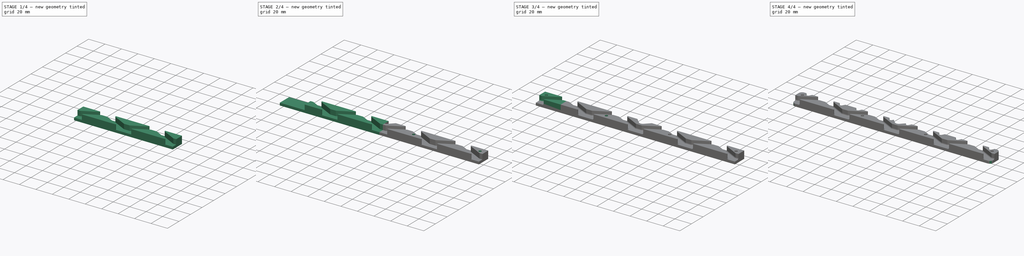
[diagram: build sequence overview — one tinted view per stage of 4, left to right]
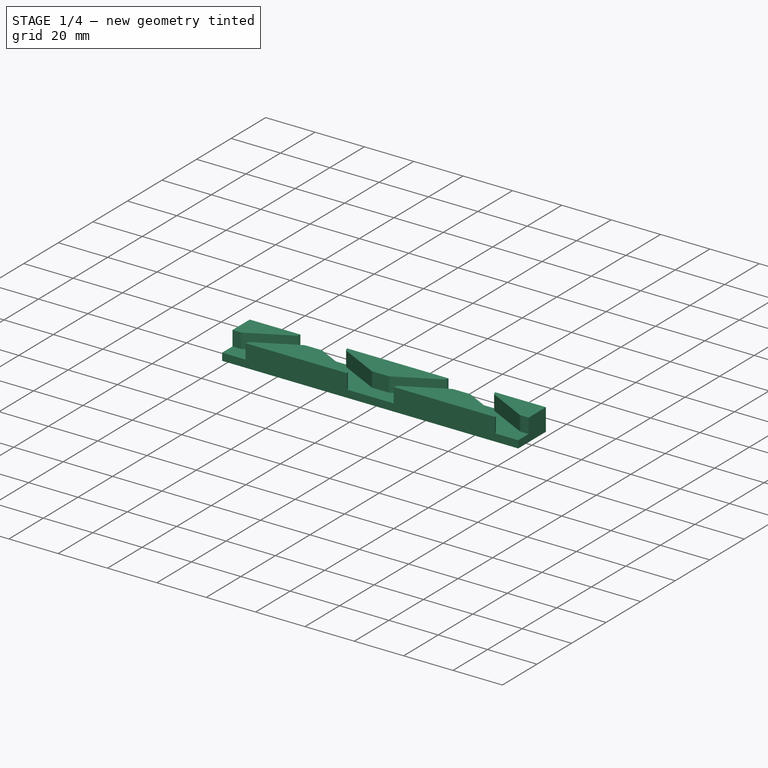
[diagram: stage 1 of 4 — iso view after this stage's code; geometry added in this stage tinted green]
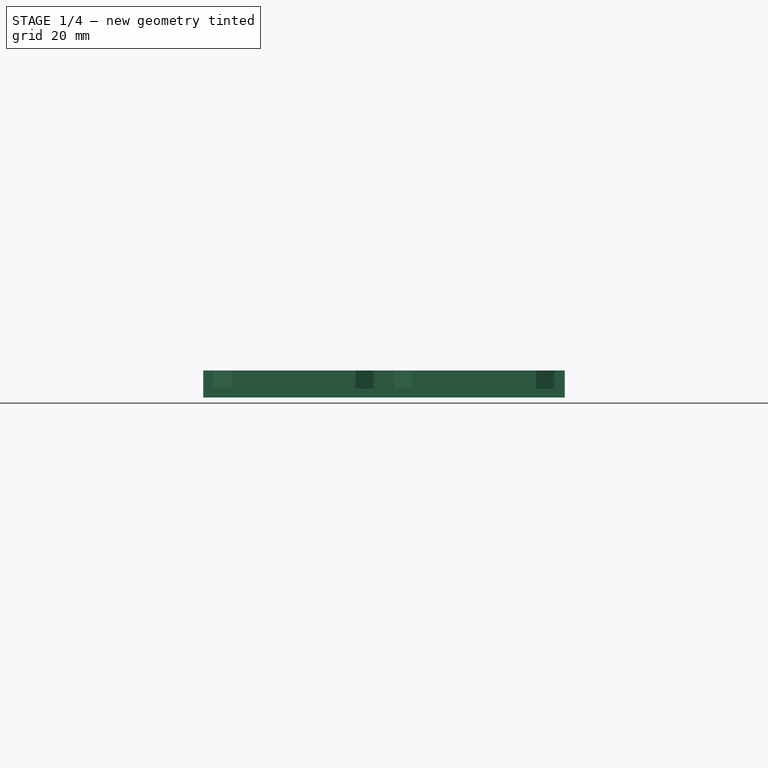
[diagram: stage 1 of 4 — front view after this stage's code; geometry added in this stage tinted green]
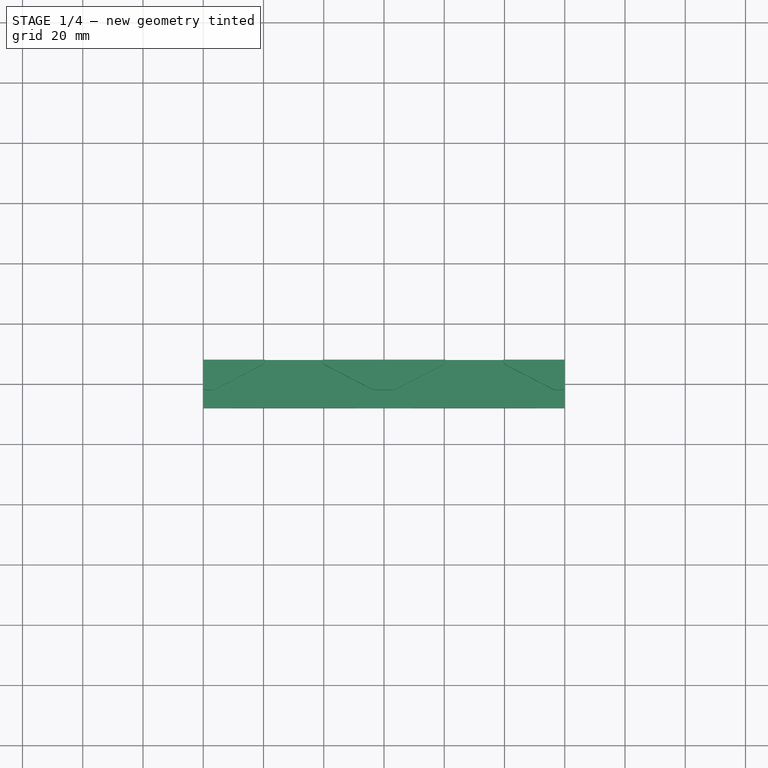
[diagram: stage 1 of 4 — top view after this stage's code; geometry added in this stage tinted green]
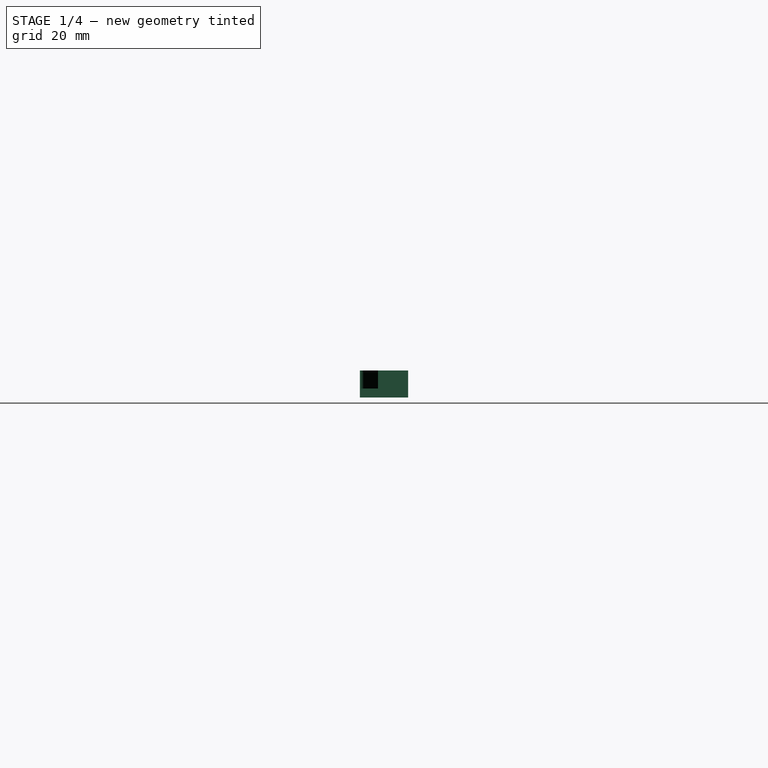
[diagram: stage 1 of 4 — right view after this stage's code; geometry added in this stage tinted green]
FCSTD DOCUMENT  (FreeCAD 0.18R16110 (Git))
Label: WireRackMount
License: All rights reserved
LicenseURL: http://en.wikipedia.org/wiki/All_rights_reserved
objects: PartDesign::Mirrored×5, Sketcher::SketchObject×4, PartDesign::LinearPattern×4, PartDesign::MultiTransform×3, PartDesign::Pad×2, PartDesign::Pocket×2, PartDesign::Fillet×2, PartDesign::Body×1
note: 27 computed .brp shape members not serialized (recipe doc carries the construction recipe); baked Part::Feature solids carry a one-line shape summary decoded from their .brp

FEATURE [Sketcher::SketchObject] Sketch
  MapMode = 5
  Support = -> [XY_Plane]
  sketch-geometry (4):
    g0: LineSegment StartX=0 StartY=-8 StartZ=0 EndX=120 EndY=-8 EndZ=0
    g1: LineSegment StartX=120 StartY=-8 StartZ=0 EndX=120 EndY=8 EndZ=0
    g2: LineSegment StartX=120 StartY=8 StartZ=0 EndX=0 EndY=8 EndZ=0
    g3: LineSegment StartX=0 StartY=8 StartZ=0 EndX=0 EndY=-8 EndZ=0
  constraints (11):
    c: Coincident(g0,g1)
    c: Coincident(g1,g2)
    c: Coincident(g2,g3)
    c: Coincident(g3,g0)
    c: Horizontal(g0)
    c: Horizontal(g2)
    c: Vertical(g1)
    c: PointOnObject(g0,g-2)
    c: Symmetric(g2,g0,g-1)
    c: DistanceY(g3,g3) = 16
    c: DistanceX(g2,g2) = 120
FEATURE [PartDesign::Pad] Pad  label="Backplane"
  Length = 3
  Length2 = 100
  Profile = -> Sketch
  Type = 0
FEATURE [Sketcher::SketchObject] Sketch001
  ExternalGeometry = -> [Pad]
  MapMode = 5
  Placement = pos=(0,0,3) rot=(0,0,1;0rad)
  Support = -> [Pad]
  sketch-geometry (15):
    g0: LineSegment StartX=0 StartY=8 StartZ=0 EndX=0 EndY=-2 EndZ=0
    g1: LineSegment StartX=3.91667 StartY=-1.77756 StartZ=0 EndX=19.4299 EndY=6.22244 EndZ=0
    g2: LineSegment StartX=20.5133 StartY=8 StartZ=0 EndX=0 EndY=8 EndZ=0
    g3: LineSegment StartX=10.5701 StartY=-6.22244 StartZ=0 EndX=26.0833 EndY=1.77756 EndZ=0
    g4: LineSegment StartX=9.48674 StartY=-8 StartZ=0 EndX=30 EndY=-8 EndZ=0
    g5: LineSegment StartX=30 StartY=2 StartZ=0 EndX=30 EndY=-8 EndZ=0
    g6: LineSegment [constr] StartX=19.4299 StartY=6.22244 StartZ=0 EndX=22.6383 EndY=0.000976688 EndZ=0
    g7: ArcOfCircle CenterX=11.4867 CenterY=-8 CenterZ=0 NormalX=0 NormalY=0 NormalZ=1 AngleXU=0 Radius=2 StartAngle=2.04692 EndAngle=3.14159
    g8: ArcOfCircle CenterX=18.5133 CenterY=8 CenterZ=0 NormalX=0 NormalY=0 NormalZ=1 AngleXU=0 Radius=2 StartAngle=5.18851 EndAngle=6.28319
    g9: ArcOfCircle CenterX=27 CenterY=-8e-16 CenterZ=0 NormalX=0 NormalY=0 NormalZ=1 AngleXU=0 Radius=2 StartAngle=1.5708 EndAngle=2.04692
    g10: ArcOfCircle CenterX=3 CenterY=0 CenterZ=0 NormalX=0 NormalY=0 NormalZ=1 AngleXU=0 Radius=2 StartAngle=4.71239 EndAngle=5.18851
    g11: LineSegment StartX=0 StartY=-2 StartZ=0 EndX=3 EndY=-2 EndZ=0
    g12: LineSegment [constr] StartX=3 StartY=-2 StartZ=0 EndX=3 EndY=0 EndZ=0
    g13: LineSegment [constr] StartX=27 StartY=-8e-16 StartZ=0 EndX=27 EndY=2 EndZ=0
    g14: LineSegment StartX=30 StartY=2 StartZ=0 EndX=27 EndY=2 EndZ=0
  constraints (44):
    c: PointOnObject(g0,g-2)
    c: Horizontal(g2)
    c: Coincident(g2,g0)
    c: Vertical(g5)
    c: Horizontal(g4)
    c: Coincident(g0,g-3)
    c: DistanceY(g5,g5) = 10
    c: PointOnObject(g6,g3)
    c: Perpendicular(g6,g1)
    c: Distance(g6) = 7
    c: Parallel(g1,g3)
    c: DistanceY(g-3,g0) = 6
    c: Coincident(g4,g5)
    c: PointOnObject(g7,g4)
    c: Tangent(g3,g7) = 1.5708
    c: Coincident(g7,g4)
    c: PointOnObject(g-3,g4)
    c: Radius(g7) = 2
    c: PointOnObject(g8,g2)
    c: Coincident(g2,g8)
    c: Tangent(g8,g1) = -1.5708
    c: Tangent(g1,g10) = -1.5708
    c: Tangent(g3,g9) = 1.5708
    c: DistanceX(g-1,g4) = 30
    c: Equal(g7,g10)
    c: Equal(g10,g8)
    c: Equal(g8,g9)
    c: Coincident(g6,g1)
    c: Equal(g3,g1)
    c: DistanceX(g-3,g4) = 9.48674
    c: Coincident(g11,g0)
    c: Coincident(g11,g10)
    c: Tangent(g11,g10)
    c: Coincident(g12,g10)
    c: Coincident(g12,g10)
    c: Horizontal(g11)
    c: Coincident(g13,g9)
    c: Coincident(g13,g9)
    c: Vertical(g13)
    c: Coincident(g14,g5)
    c: Coincident(g14,g9)
    c: Horizontal(g14)
    c: Equal(g11,g14)
    c: DistanceX(g11,g11) = 3
FEATURE [PartDesign::Pad] Pad001  label="Notches"
  BaseFeature = -> Pad
  Length = 6
  Length2 = 100
  Profile = -> Sketch001
  Type = 0
FEATURE [PartDesign::Mirrored] Mirrored
  MirrorPlane = -> Pad001 [Face13]
FEATURE [PartDesign::LinearPattern] LinearPattern
  Direction = -> Sketch001 [H_Axis]
  Length = 60
  Occurrences = 2
FEATURE [PartDesign::MultiTransform] MultiTransform
  BaseFeature = -> Pad001
  Originals = -> [Pad001]
  Transformations = -> [Mirrored,LinearPattern]
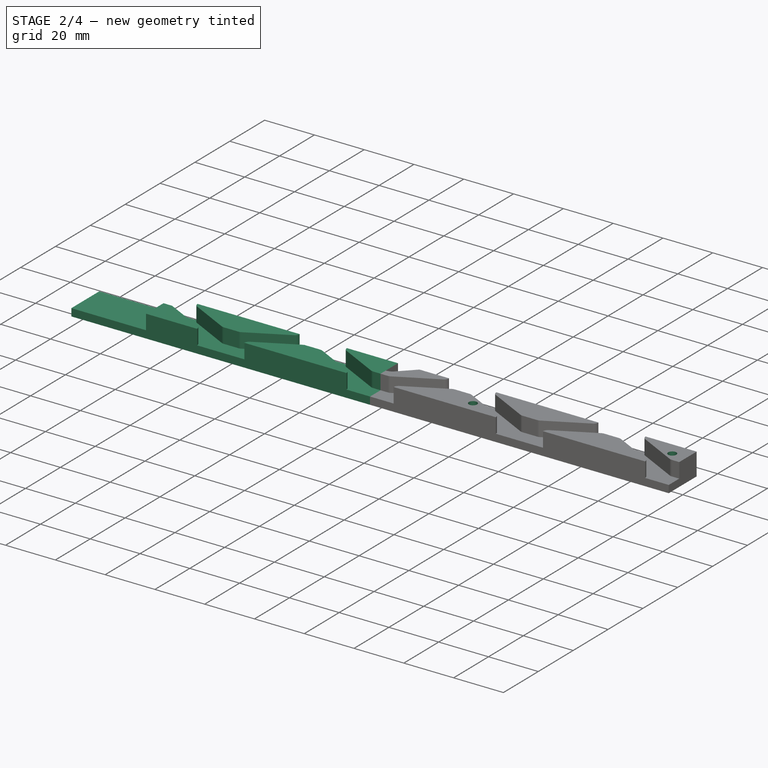
[diagram: stage 2 of 4 — iso view after this stage's code; geometry added in this stage tinted green]
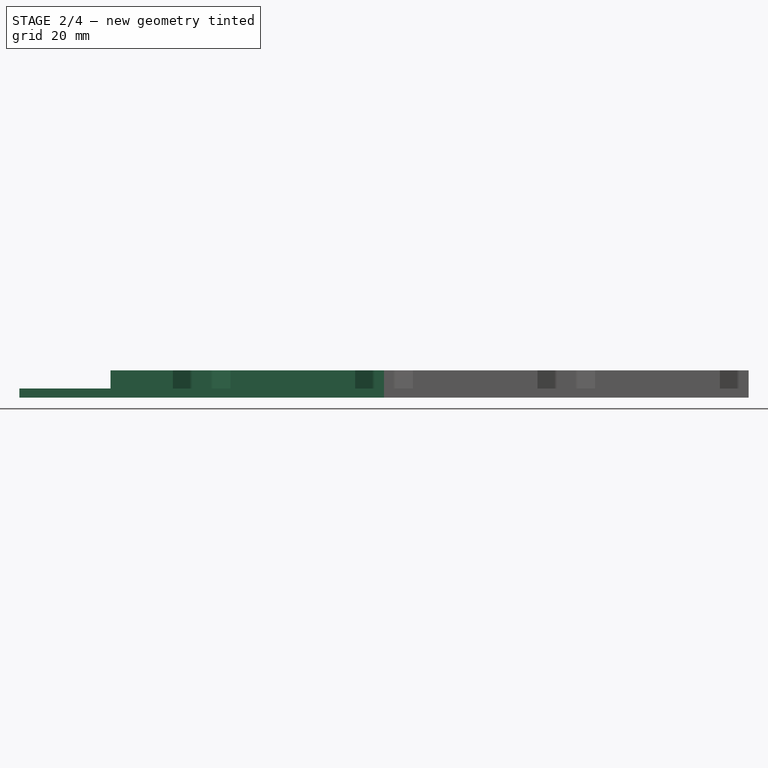
[diagram: stage 2 of 4 — front view after this stage's code; geometry added in this stage tinted green]
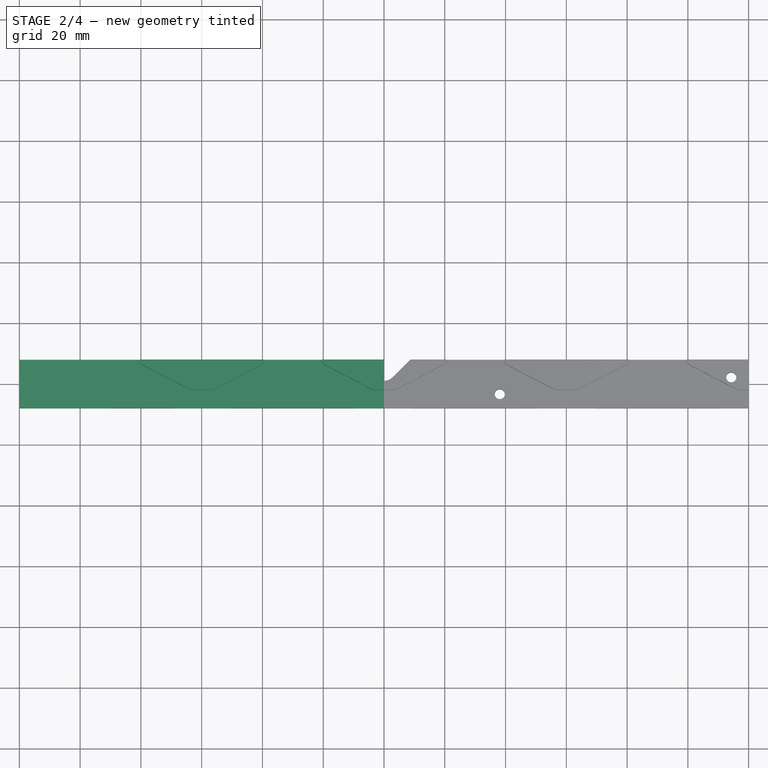
[diagram: stage 2 of 4 — top view after this stage's code; geometry added in this stage tinted green]
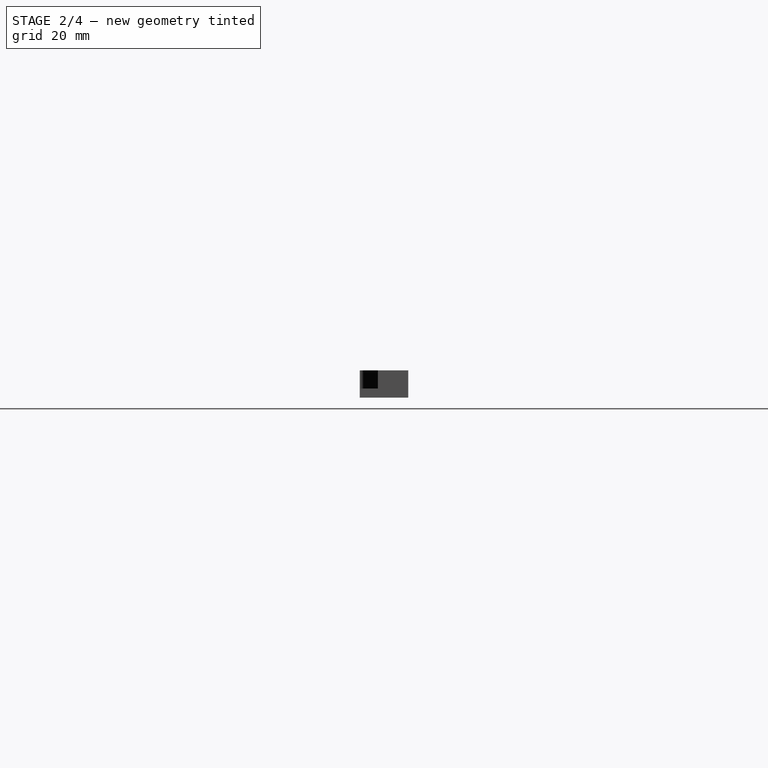
[diagram: stage 2 of 4 — right view after this stage's code; geometry added in this stage tinted green]
FEATURE [Sketcher::SketchObject] Sketch002
  ExternalGeometry = -> [MultiTransform]
  MapMode = 5
  Placement = pos=(0,0,9) rot=(0,0,1;0rad)
  Support = -> [MultiTransform]
  sketch-geometry (8):
    g0: Circle CenterX=38.1 CenterY=-3.37973 CenterZ=0 NormalX=0 NormalY=0 NormalZ=1 AngleXU=0 Radius=1.65
    g1: Circle CenterX=114.3 CenterY=2.14208 CenterZ=0 NormalX=0 NormalY=0 NormalZ=1 AngleXU=0 Radius=1.65
    g2: LineSegment [constr] StartX=38.1 StartY=-3.37973 StartZ=0 EndX=38.1 EndY=-0.379734 EndZ=0
    g3: LineSegment [constr] StartX=114.3 StartY=2.14208 StartZ=0 EndX=114.3 EndY=-0.857918 EndZ=0
    g4: ArcOfCircle CenterX=0 CenterY=5 CenterZ=0 NormalX=0 NormalY=0 NormalZ=1 AngleXU=0 Radius=4 StartAngle=4.71239 EndAngle=5.49779
    g5: LineSegment StartX=0 StartY=9 StartZ=0 EndX=9.65685 EndY=9 EndZ=0
    g6: LineSegment StartX=9.65685 StartY=9 StartZ=0 EndX=2.82843 EndY=2.17157 EndZ=0
    g7: LineSegment StartX=0 StartY=9 StartZ=0 EndX=0 EndY=1 EndZ=0
  constraints (24):
    c: Coincident(g2,g0)
    c: Vertical(g2)
    c: Coincident(g3,g1)
    c: Vertical(g3)
    c: Equal(g2,g3)
    c: Equal(g1,g0)
    c: Radius(g1) = 1.65
    c: DistanceY(g3,g3) = 3
    c: DistanceX(g-1,g0) = 38.1
    c: DistanceX(g0,g1) = 76.2
    c: PointOnObject(g4,g-2)
    c: Coincident(g5,g6)
    c: Horizontal(g5)
    c: PointOnObject(g5,g-2)
    c: Coincident(g7,g4)
    c: PointOnObject(g4,g7)
    c: Coincident(g5,g7)
    c: Radius(g4) = 4
    c: PointOnObject(g2,g-6)
    c: PointOnObject(g3,g-7)
    c: DistanceY(g4,g-8) = 3
    c: Tangent(g6,g4) = 1.5708
    c: Angle(g5,g6) = 0.785398
    c: DistanceY(g-8,g5) = 1
FEATURE [PartDesign::Pocket] Pocket  label="CenterRodHole"
  BaseFeature = -> MultiTransform
  Length = 5
  Length2 = 100
  Profile = -> Sketch002
  Type = 1
FEATURE [PartDesign::Mirrored] Mirrored001  label="BackplaneMirror"
  BaseFeature = -> Pocket
  MirrorPlane = -> Sketch [V_Axis]
  Originals = -> [Pad]
FEATURE [PartDesign::Mirrored] Mirrored002
  MirrorPlane = -> Sketch001 [V_Axis]
FEATURE [PartDesign::LinearPattern] LinearPattern001
  Direction = -> Sketch001 [H_Axis]
  Length = 60
  Occurrences = 2
  Reversed = true
FEATURE [PartDesign::MultiTransform] MultiTransform001  label="NotchMirror1"
  BaseFeature = -> Mirrored001
  Originals = -> [Pad001]
  Transformations = -> [Mirrored002,LinearPattern001]
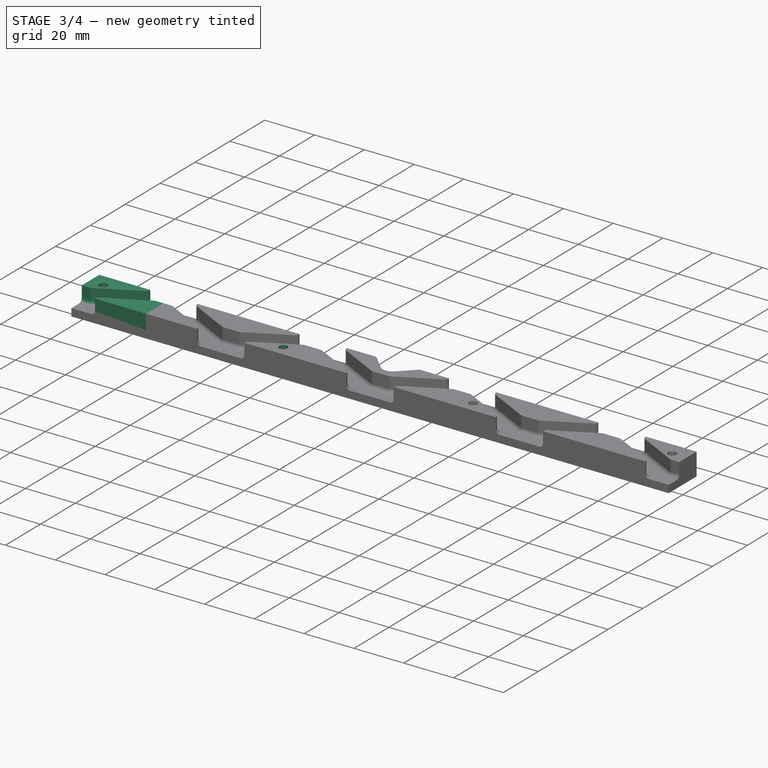
[diagram: stage 3 of 4 — iso view after this stage's code; geometry added in this stage tinted green]
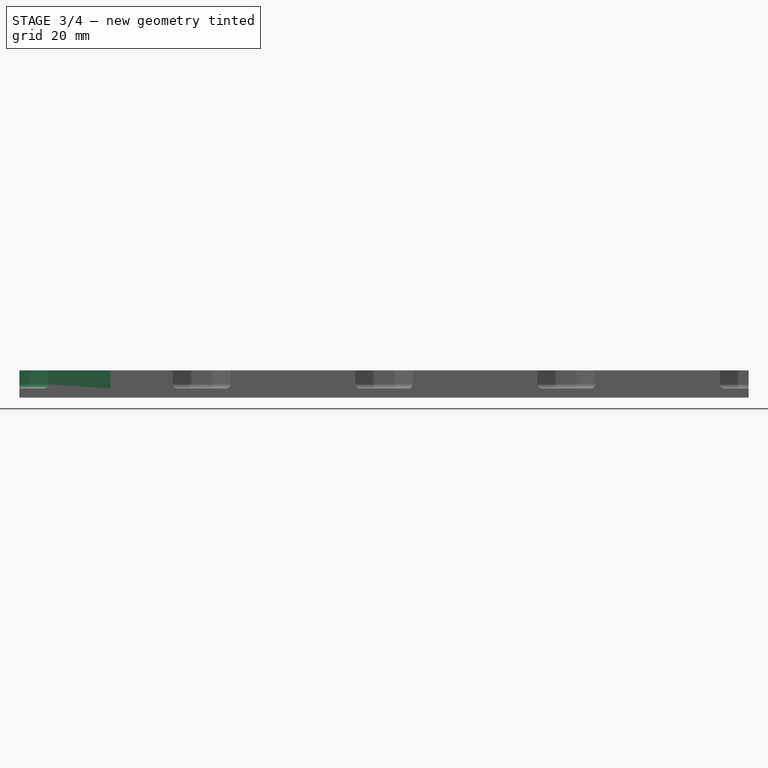
[diagram: stage 3 of 4 — front view after this stage's code; geometry added in this stage tinted green]
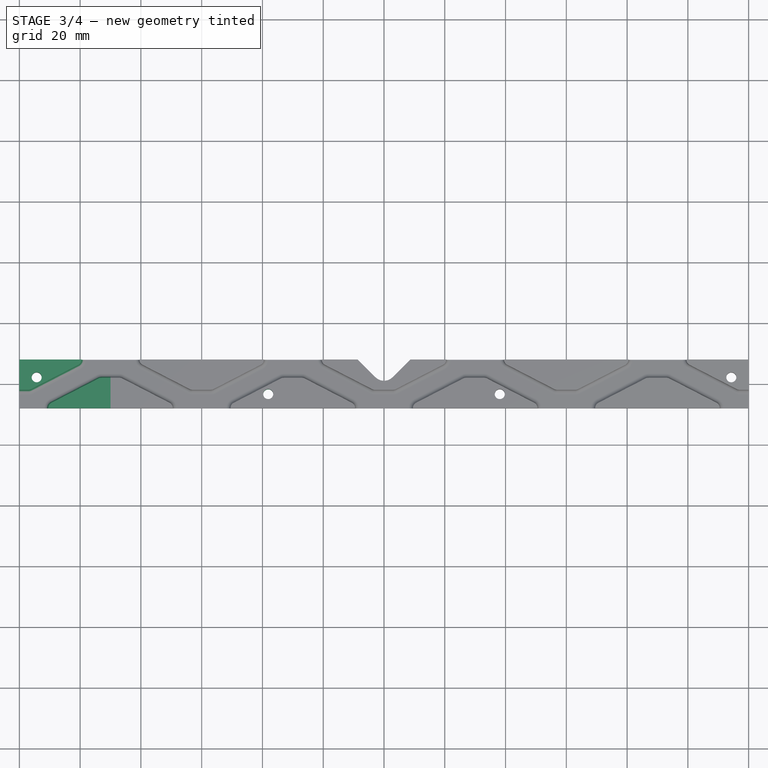
[diagram: stage 3 of 4 — top view after this stage's code; geometry added in this stage tinted green]
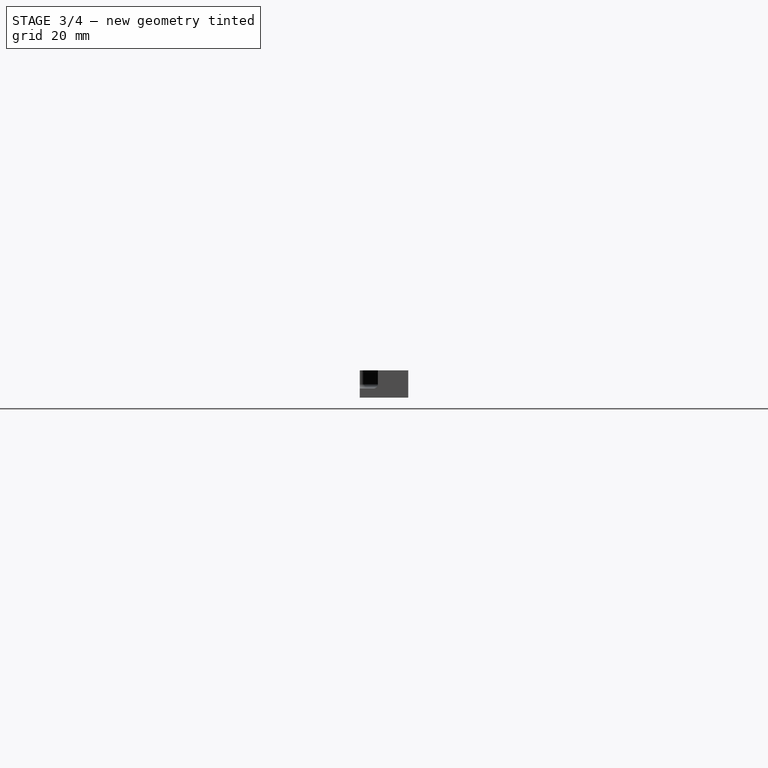
[diagram: stage 3 of 4 — right view after this stage's code; geometry added in this stage tinted green]
FEATURE [PartDesign::LinearPattern] LinearPattern002  label="NotchMirror2"
  BaseFeature = -> MultiTransform001
  Direction = -> Sketch001 [H_Axis]
  Length = 120
  Occurrences = 2
  Originals = -> [Pad001]
  Reversed = true
FEATURE [PartDesign::Mirrored] Mirrored003
  BaseFeature = -> LinearPattern002
  MirrorPlane = -> Sketch002 [V_Axis]
  Originals = -> [Pocket]
FEATURE [PartDesign::Fillet] Fillet
  Base = -> Mirrored003 [Edge103,Edge99,Edge95,Edge111,Edge86,Edge62,Edge36,Edge45,Edge54]
  BaseFeature = -> Mirrored003
  Radius = 1.5
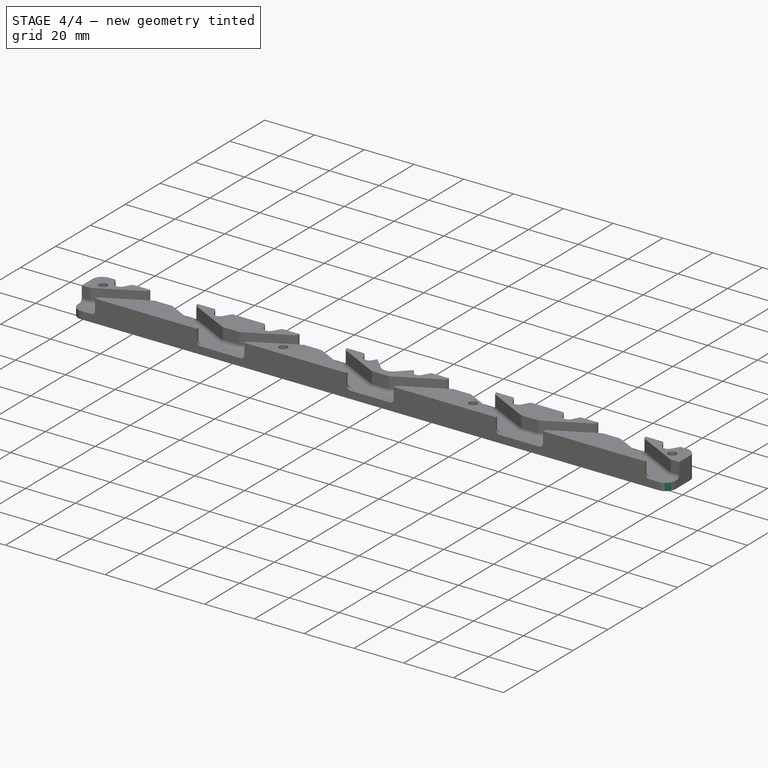
[diagram: stage 4 of 4 — iso view after this stage's code; geometry added in this stage tinted green]
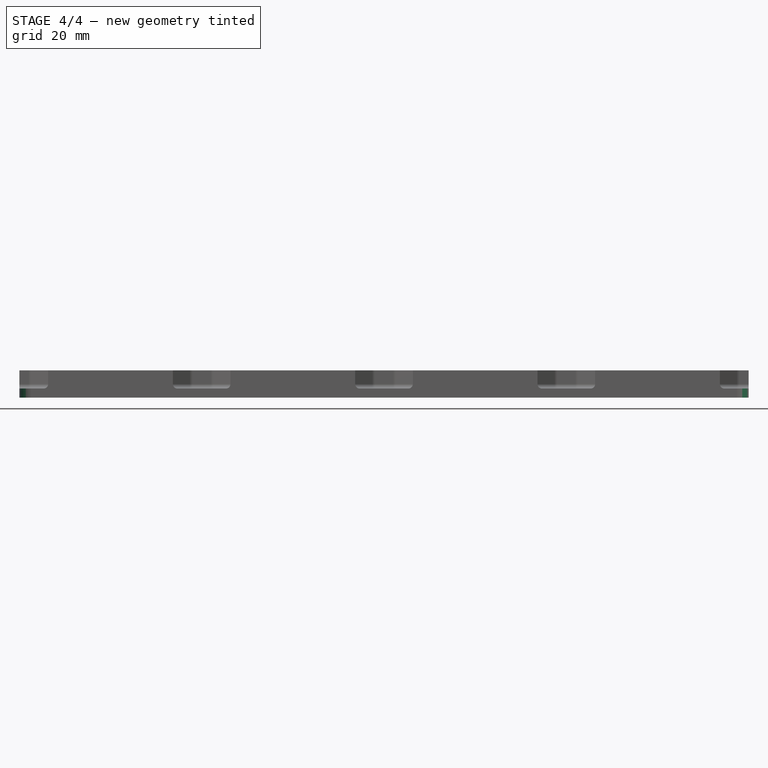
[diagram: stage 4 of 4 — front view after this stage's code; geometry added in this stage tinted green]
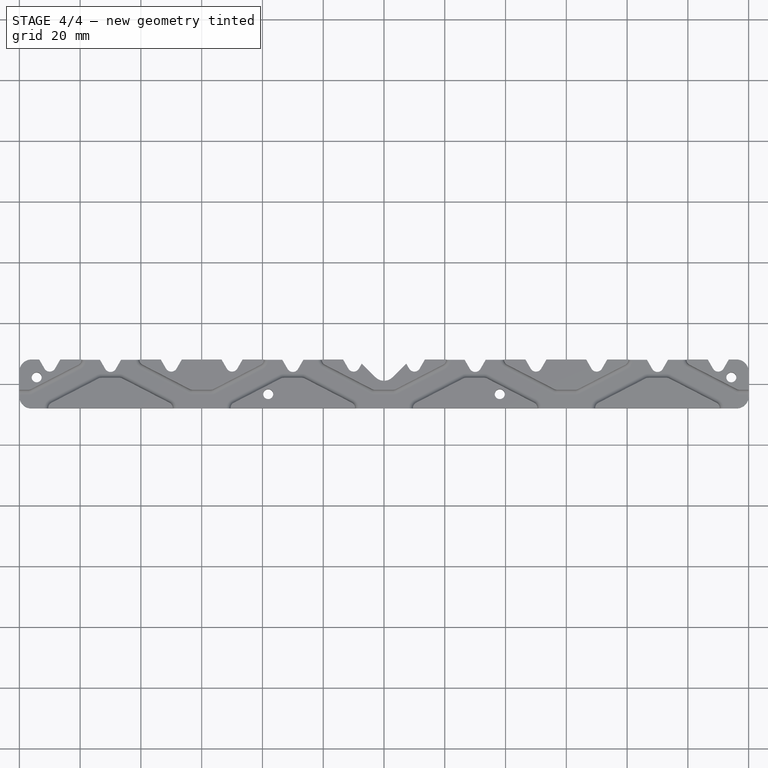
[diagram: stage 4 of 4 — top view after this stage's code; geometry added in this stage tinted green]
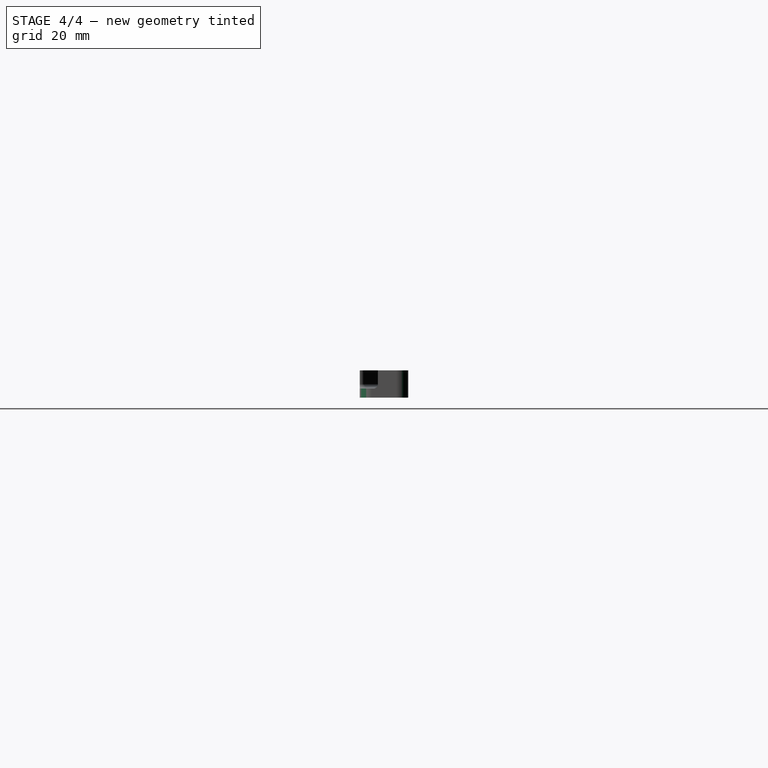
[diagram: stage 4 of 4 — right view after this stage's code; geometry added in this stage tinted green]
FEATURE [PartDesign::Fillet] Fillet001
  Base = -> Fillet [Edge7,Edge80,Edge60,Edge218]
  BaseFeature = -> Fillet
  Radius = 4
FEATURE [Sketcher::SketchObject] Sketch003
  ExternalGeometry = -> [Fillet001]
  MapMode = 5
  Placement = pos=(0,0,9) rot=(0,0,1;0rad)
  Support = -> [Fillet001]
  sketch-geometry (5):
    g0: ArcOfCircle CenterX=10 CenterY=6 CenterZ=0 NormalX=0 NormalY=0 NormalZ=1 AngleXU=0 Radius=2 StartAngle=3.66519 EndAngle=5.75959
    g1: LineSegment StartX=11.7321 StartY=5 StartZ=0 EndX=14.0415 EndY=9 EndZ=0
    g2: LineSegment StartX=8.26795 StartY=5 StartZ=0 EndX=5.95855 EndY=9 EndZ=0
    g3: LineSegment StartX=5.95855 StartY=9 StartZ=0 EndX=14.0415 EndY=9 EndZ=0
    g4: LineSegment [constr] StartX=10 StartY=6 StartZ=0 EndX=10 EndY=9 EndZ=0
  constraints (14):
    c: PointOnObject(g4,g3)
    c: Coincident(g3,g1)
    c: Coincident(g2,g3)
    c: Coincident(g0,g4)
    c: Vertical(g4)
    c: Tangent(g0,g1) = -1.5708
    c: Tangent(g0,g2) = 1.5708
    c: Symmetric(g2,g1,g4)
    c: Symmetric(g0,g0,g4)
    c: DistanceX(g-1,g0) = 10
    c: Angle(g2,g3) = 1.0472
    c: DistanceY(g0,g-3) = 2
    c: Radius(g0) = 2
    c: DistanceY(g4,g4) = 3
FEATURE [PartDesign::Pocket] Pocket001  label="SupportRodHole"
  BaseFeature = -> Fillet001
  Length = 5
  Length2 = 100
  Profile = -> Sketch003
  Type = 1
FEATURE [PartDesign::LinearPattern] LinearPattern003
  Direction = -> Sketch003 [H_Axis]
  Length = 100
  Occurrences = 6
FEATURE [PartDesign::Mirrored] Mirrored004
  MirrorPlane = -> Sketch003 [V_Axis]
FEATURE [PartDesign::MultiTransform] MultiTransform002
  BaseFeature = -> Pocket001
  Originals = -> [Pocket001]
  Transformations = -> [LinearPattern003,Mirrored004]
FEATURE [PartDesign::Body] Body
  Group = -> [Sketch,Pad,Sketch001,Pad001,MultiTransform,Mirrored,LinearPattern,Sketch002,Pocket,Mirrored001,MultiTransform001,Mirrored002,LinearPattern001,LinearPattern002,Mirrored003,Fillet,Fillet001,Sketch003,Pocket001,MultiTransform002,LinearPattern003,Mirrored004]
  Origin = -> Origin
  Tip = -> MultiTransform002
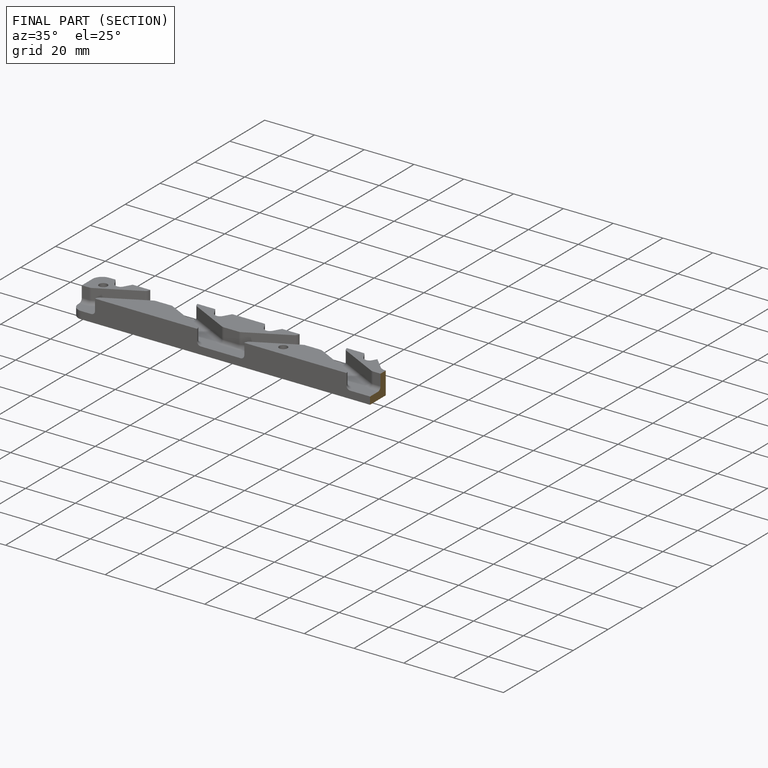
[diagram: finished part — half-section view (interior)]
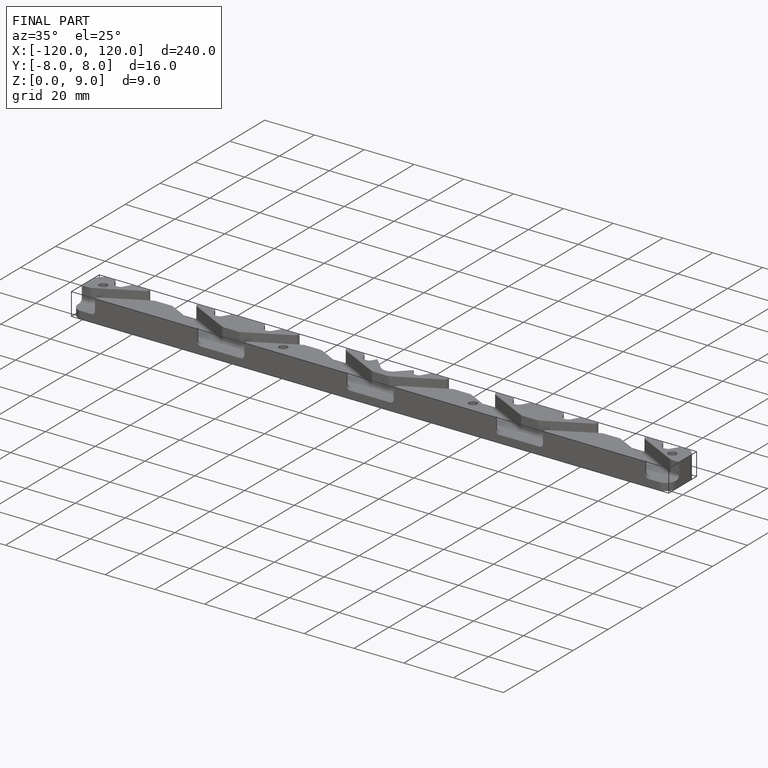
[diagram: finished part — iso view with bounding-box wireframe]
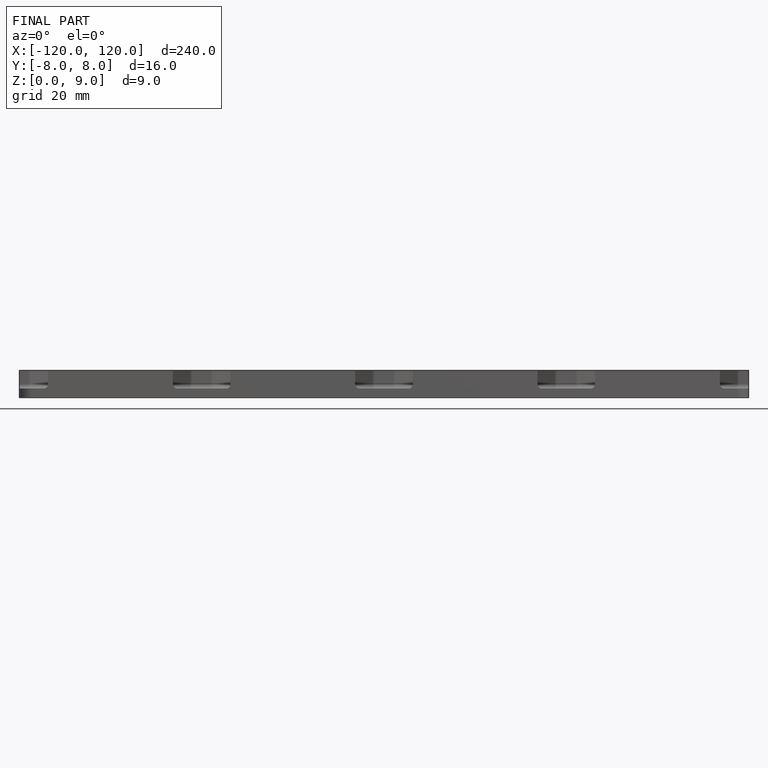
[diagram: finished part — front view with bounding-box wireframe]
